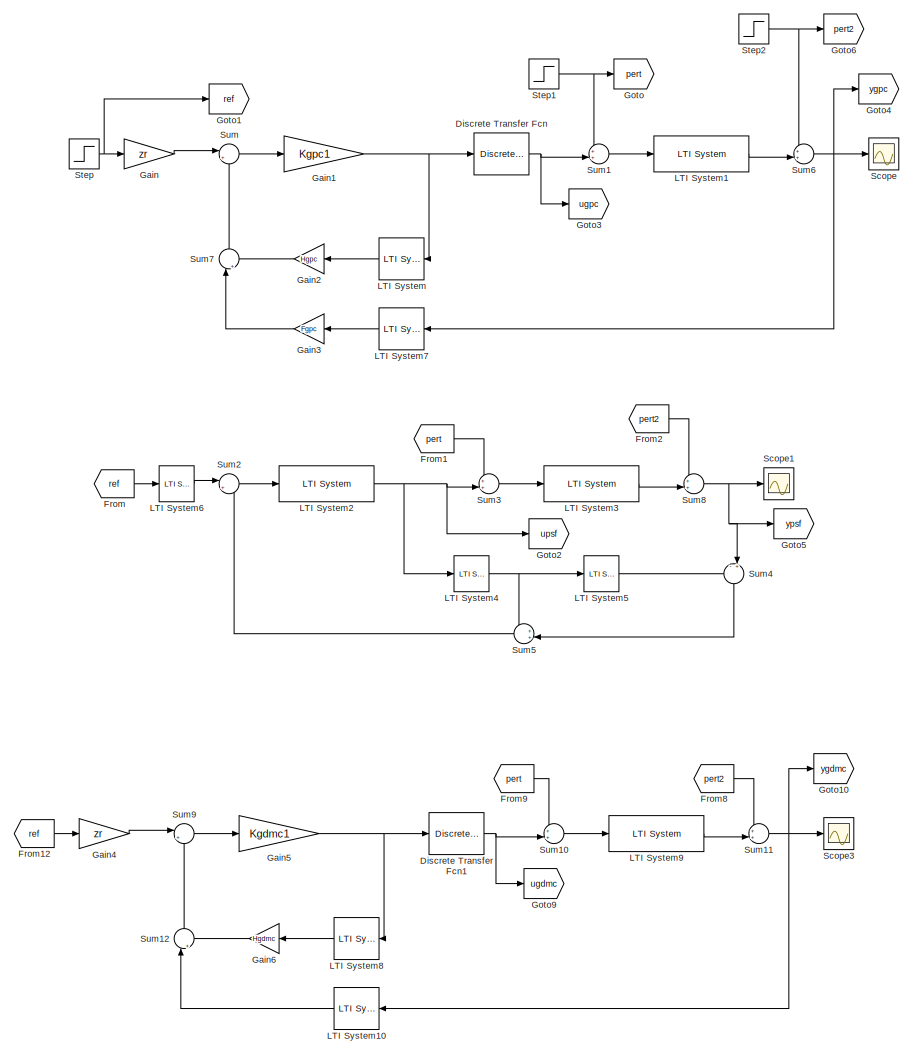
[diagram: root canvas - part 1/2, left side, full height]
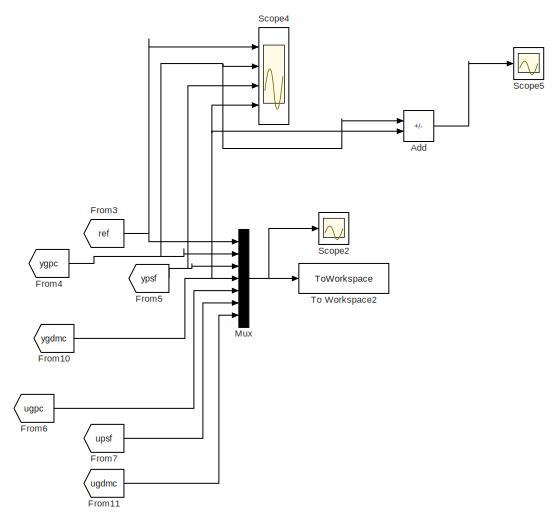
[diagram: root canvas - part 2/2, middle right region]
MODEL slx_fe0788383736
KIND model
CONFIG AbsTol = auto
CONFIG EnableMultiTasking = off
CONFIG FixedStep = auto
CONFIG MaxStep = 0.01
CONFIG MinStep = auto
CONFIG RelTol = 1e-3
CONFIG SampleTimeConstraint = Unconstrained
CONFIG Solver = VariableStepAuto
CONFIG SolverName = VariableStepAuto
CONFIG StartTime = 0.0
CONFIG StopTime = tsim
BLOCK [Sum] Add
  IconShape = rectangular
  Inputs = +-
  Ports = [2, 1]
BLOCK [DiscreteTransferFcn] Discrete Transfer Fcn
  Denominator = [1 -1]
  InputPortMap = u0
  Numerator = [1 0]
  Ports = [1, 1]
  SampleTime = Ts
BLOCK [DiscreteTransferFcn] Discrete Transfer Fcn1
  Denominator = [1 -1]
  InputPortMap = u0
  Numerator = [1 0]
  Ports = [1, 1]
  SampleTime = Ts
BLOCK [From] From
  GotoTag = ref
BLOCK [From] From1
  GotoTag = pert
BLOCK [From] From10
  GotoTag = ygdmc
BLOCK [From] From11
  GotoTag = ugdmc
BLOCK [From] From12
  GotoTag = ref
BLOCK [From] From2
  GotoTag = pert2
BLOCK [From] From3
  GotoTag = ref
BLOCK [From] From4
  GotoTag = ygpc
BLOCK [From] From5
  GotoTag = ypsf
BLOCK [From] From6
  GotoTag = ugpc
BLOCK [From] From7
  GotoTag = upsf
BLOCK [From] From8
  GotoTag = pert2
BLOCK [From] From9
  GotoTag = pert
BLOCK [Gain] Gain
  Gain = zr
  Multiplication = Matrix(K*u)
BLOCK [Gain] Gain1
  Gain = Kgpc1
  Multiplication = Matrix(K*u)
BLOCK [Gain] Gain2
  Gain = Hgpc
  Multiplication = Matrix(K*u)
  NameLocation = top
BLOCK [Gain] Gain3
  Gain = Fgpc
  Multiplication = Matrix(K*u)
  NameLocation = top
BLOCK [Gain] Gain4
  Gain = zr
  Multiplication = Matrix(K*u)
BLOCK [Gain] Gain5
  Gain = Kgdmc1
  Multiplication = Matrix(K*u)
BLOCK [Gain] Gain6
  Gain = Hgdmc
  Multiplication = Matrix(K*u)
  NameLocation = top
BLOCK [Goto] Goto
  GotoTag = pert
BLOCK [Goto] Goto1
  GotoTag = ref
BLOCK [Goto] Goto10
  GotoTag = ygdmc
BLOCK [Goto] Goto2
  GotoTag = upsf
BLOCK [Goto] Goto3
  GotoTag = ugpc
BLOCK [Goto] Goto4
  GotoTag = ygpc
BLOCK [Goto] Goto5
  GotoTag = ypsf
BLOCK [Goto] Goto6
  GotoTag = pert2
BLOCK [Goto] Goto9
  GotoTag = ugdmc
BLOCK [Reference] LTI System  REF=cstblocks/LTI System
  NameLocation = top
  Ports = [1, 1]
  SourceBlock = cstblocks/LTI System
  SourceProductBaseCode = CT
  SourceType = LTI Block
BLOCK [Reference] LTI System1  REF=cstblocks/LTI System
  Ports = [1, 1]
  SourceBlock = cstblocks/LTI System
  SourceProductBaseCode = CT
  SourceType = LTI Block
BLOCK [Reference] LTI System10  REF=cstblocks/LTI System
  NameLocation = top
  Ports = [1, 1]
  SourceBlock = cstblocks/LTI System
  SourceProductBaseCode = CT
  SourceType = LTI Block
BLOCK [Reference] LTI System2  REF=cstblocks/LTI System
  Ports = [1, 1]
  SourceBlock = cstblocks/LTI System
  SourceProductBaseCode = CT
  SourceType = LTI Block
BLOCK [Reference] LTI System3  REF=cstblocks/LTI System
  Ports = [1, 1]
  SourceBlock = cstblocks/LTI System
  SourceProductBaseCode = CT
  SourceType = LTI Block
BLOCK [Reference] LTI System4  REF=cstblocks/LTI System
  Ports = [1, 1]
  SourceBlock = cstblocks/LTI System
  SourceProductBaseCode = CT
  SourceType = LTI Block
BLOCK [Reference] LTI System5  REF=cstblocks/LTI System
  Ports = [1, 1]
  SourceBlock = cstblocks/LTI System
  SourceProductBaseCode = CT
  SourceType = LTI Block
BLOCK [Reference] LTI System6  REF=cstblocks/LTI System
  Ports = [1, 1]
  SourceBlock = cstblocks/LTI System
  SourceProductBaseCode = CT
  SourceType = LTI Block
BLOCK [Reference] LTI System7  REF=cstblocks/LTI System
  NameLocation = top
  Ports = [1, 1]
  SourceBlock = cstblocks/LTI System
  SourceProductBaseCode = CT
  SourceType = LTI Block
BLOCK [Reference] LTI System8  REF=cstblocks/LTI System
  NameLocation = top
  Ports = [1, 1]
  SourceBlock = cstblocks/LTI System
  SourceProductBaseCode = CT
  SourceType = LTI Block
BLOCK [Reference] LTI System9  REF=cstblocks/LTI System
  Ports = [1, 1]
  SourceBlock = cstblocks/LTI System
  SourceProductBaseCode = CT
  SourceType = LTI Block
BLOCK [Mux] Mux
  DisplayOption = bar
  Inputs = 7
  Ports = [7, 1]
BLOCK [Scope] Scope
  Floating = off
  NumInputPorts = 1
  Ports = [1]
  ScopeSpecificationString = Simulink.scopes.TimeScopeBlockCfg('CurrentConfiguration', extmgr.ConfigurationSet(extmgr.Configuration('Core','General UI',true),extmgr.Configuration('Core','Source UI',true),extmgr.Configuration('Sources','WiredSimulink',true),extmgr.Configuration('Visuals','Time Domain',true,'SerializedDisplays',{struct('MinYLimReal','-110.49504','MaxYLimReal','118.17277','YLabelReal','','MinYLimMag',' 0.00000',...<+1338ch>
BLOCK [Scope] Scope1
  Floating = off
  NumInputPorts = 1
  Ports = [1]
  ScopeSpecificationString = Simulink.scopes.TimeScopeBlockCfg('CurrentConfiguration', extmgr.ConfigurationSet(extmgr.Configuration('Core','General UI',true),extmgr.Configuration('Core','Source UI',true),extmgr.Configuration('Sources','WiredSimulink',true,'DataLoggingVariableName','ScopeData1'),extmgr.Configuration('Visuals','Time Domain',true,'SerializedDisplays',{struct('MinYLimReal','-0.08824','MaxYLimReal','0.79415','YLab...<+1363ch>
BLOCK [Scope] Scope2
  Floating = off
  NumInputPorts = 1
  Ports = [1]
  ScopeSpecificationString = Simulink.scopes.TimeScopeBlockCfg('CurrentConfiguration', extmgr.ConfigurationSet(extmgr.Configuration('Core','General UI',true),extmgr.Configuration('Core','Source UI',true),extmgr.Configuration('Sources','WiredSimulink',true,'DataLoggingVariableName','ScopeData1'),extmgr.Configuration('Visuals','Time Domain',true,'SerializedDisplays',{struct('MinYLimReal','-0.07394','MaxYLimReal','1.0628','YLabe...<+1646ch>
BLOCK [Scope] Scope3
  Floating = off
  NumInputPorts = 1
  Ports = [1]
  ScopeSpecificationString = Simulink.scopes.TimeScopeBlockCfg('CurrentConfiguration', extmgr.ConfigurationSet(extmgr.Configuration('Core','General UI',true),extmgr.Configuration('Core','Source UI',true),extmgr.Configuration('Sources','WiredSimulink',true,'DataLoggingVariableName','ScopeData1'),extmgr.Configuration('Visuals','Time Domain',true,'SerializedDisplays',{struct('MinYLimReal','-110.49504','MaxYLimReal','118.17277','...<+1378ch>
BLOCK [Scope] Scope4
  Floating = off
  NumInputPorts = 4
  Ports = [4]
  ScopeSpecificationString = Simulink.scopes.TimeScopeBlockCfg('CurrentConfiguration', extmgr.ConfigurationSet(extmgr.Configuration('Core','General UI',true),extmgr.Configuration('Core','Source UI',true),extmgr.Configuration('Sources','WiredSimulink',true,'DataLoggingVariableName','ScopeData2'),extmgr.Configuration('Visuals','Time Domain',true,'SerializedDisplays',{struct('MinYLimReal','-0.07154','MaxYLimReal','0.64389','YLab...<+1429ch>
BLOCK [Scope] Scope5
  Floating = off
  NumInputPorts = 1
  Ports = [1]
  ScopeSpecificationString = Simulink.scopes.TimeScopeBlockCfg('CurrentConfiguration', extmgr.ConfigurationSet(extmgr.Configuration('Core','General UI',true),extmgr.Configuration('Core','Source UI',true),extmgr.Configuration('Sources','WiredSimulink',true,'DataLoggingVariableName','ScopeData3'),extmgr.Configuration('Visuals','Time Domain',true,'SerializedDisplays',{struct('MinYLimReal','-0.0000000000000072','MaxYLimReal','0.0...<+1494ch>
BLOCK [Step] Step
  After = ampref
  SampleTime = 0
  Time = tref
BLOCK [Step] Step1
  After = amppert
  SampleTime = 0
  Time = tpert
BLOCK [Step] Step2
  After = amppert2
  SampleTime = 0
  Time = tpert2
BLOCK [Sum] Sum
  Inputs = |+-
  Ports = [2, 1]
BLOCK [Sum] Sum1
  Inputs = ++|
  Ports = [2, 1]
BLOCK [Sum] Sum10
  Inputs = ++|
  Ports = [2, 1]
BLOCK [Sum] Sum11
  Inputs = ++|
  Ports = [2, 1]
BLOCK [Sum] Sum12
  Inputs = |++
  NameLocation = right
  Ports = [2, 1]
BLOCK [Sum] Sum2
  Inputs = |+-
  Ports = [2, 1]
BLOCK [Sum] Sum3
  Inputs = ++|
  Ports = [2, 1]
BLOCK [Sum] Sum4
  Inputs = -+|
  NameLocation = left
  Ports = [2, 1]
BLOCK [Sum] Sum5
  Inputs = ++|
  NameLocation = top
  Ports = [2, 1]
BLOCK [Sum] Sum6
  Inputs = ++|
  Ports = [2, 1]
BLOCK [Sum] Sum7
  Inputs = |++
  NameLocation = right
  Ports = [2, 1]
BLOCK [Sum] Sum8
  Inputs = ++|
  Ports = [2, 1]
BLOCK [Sum] Sum9
  Inputs = |+-
  Ports = [2, 1]
BLOCK [ToWorkspace] To Workspace2
  FixptAsFi = on
  MaxDataPoints = inf
  Ports = [1]
  SampleTime = -1
  VariableName = simout
LINE Add:1 -> Scope5:1
NET Discrete Transfer Fcn1:1 -> Goto9:1, Sum10:2
NET Discrete Transfer Fcn:1 -> Goto3:1, Sum1:2
NET From10:1 -> Add:2, Mux:4, Scope4:4
LINE From11:1 -> Mux:7
LINE From12:1 -> Gain4:1
LINE From1:1 -> Sum3:1
LINE From2:1 -> Sum8:1
NET From3:1 -> Mux:1, Scope4:1
NET From4:1 -> Add:1, Mux:2, Scope4:2
NET From5:1 -> Mux:3, Scope4:3
LINE From6:1 -> Mux:5
LINE From7:1 -> Mux:6
LINE From8:1 -> Sum11:1
LINE From9:1 -> Sum10:1
LINE From:1 -> LTI System6:1
NET Gain1:1 -> Discrete Transfer Fcn:1, LTI System:1
LINE Gain2:1 -> Sum7:2
LINE Gain3:1 -> Sum7:1
LINE Gain4:1 -> Sum9:1
NET Gain5:1 -> Discrete Transfer Fcn1:1, LTI System8:1
LINE Gain6:1 -> Sum12:2
LINE Gain:1 -> Sum:1
LINE LTI System10:1 -> Sum12:1
LINE LTI System1:1 -> Sum6:2
NET LTI System2:1 -> Goto2:1, LTI System4:1, Sum3:2
LINE LTI System3:1 -> Sum8:2
NET LTI System4:1 -> LTI System5:1, Sum5:1
LINE LTI System5:1 -> Sum4:1
LINE LTI System6:1 -> Sum2:1
LINE LTI System7:1 -> Gain3:1
LINE LTI System8:1 -> Gain6:1
LINE LTI System9:1 -> Sum11:2
LINE LTI System:1 -> Gain2:1
NET Mux:1 -> Scope2:1, To Workspace2:1
NET Step1:1 -> Goto:1, Sum1:1
NET Step2:1 -> Goto6:1, Sum6:1
NET Step:1 -> Gain:1, Goto1:1
LINE Sum10:1 -> LTI System9:1
NET Sum11:1 -> Goto10:1, LTI System10:1, Scope3:1
LINE Sum12:1 -> Sum9:2
LINE Sum1:1 -> LTI System1:1
LINE Sum2:1 -> LTI System2:1
LINE Sum3:1 -> LTI System3:1
LINE Sum4:1 -> Sum5:2
LINE Sum5:1 -> Sum2:2
NET Sum6:1 -> Goto4:1, LTI System7:1, Scope:1
LINE Sum7:1 -> Sum:2
NET Sum8:1 -> Goto5:1, Scope1:1, Sum4:2
LINE Sum9:1 -> Gain5:1
LINE Sum:1 -> Gain1:1
note: NET lines group one-source signal fan-out (src -> all destinations, sorted); 1:1 wires keep LINE
